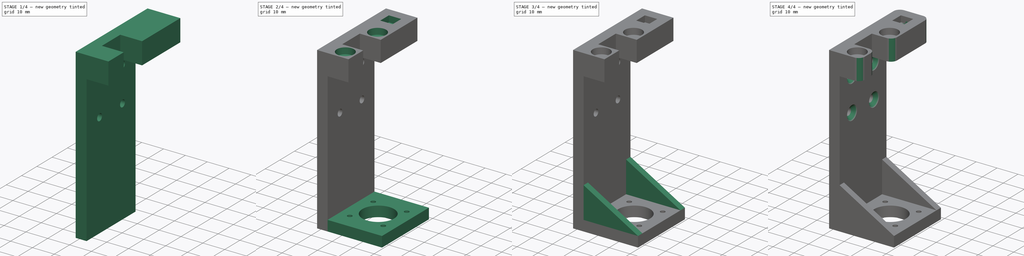
[diagram: build sequence overview — one tinted view per stage of 4, left to right]
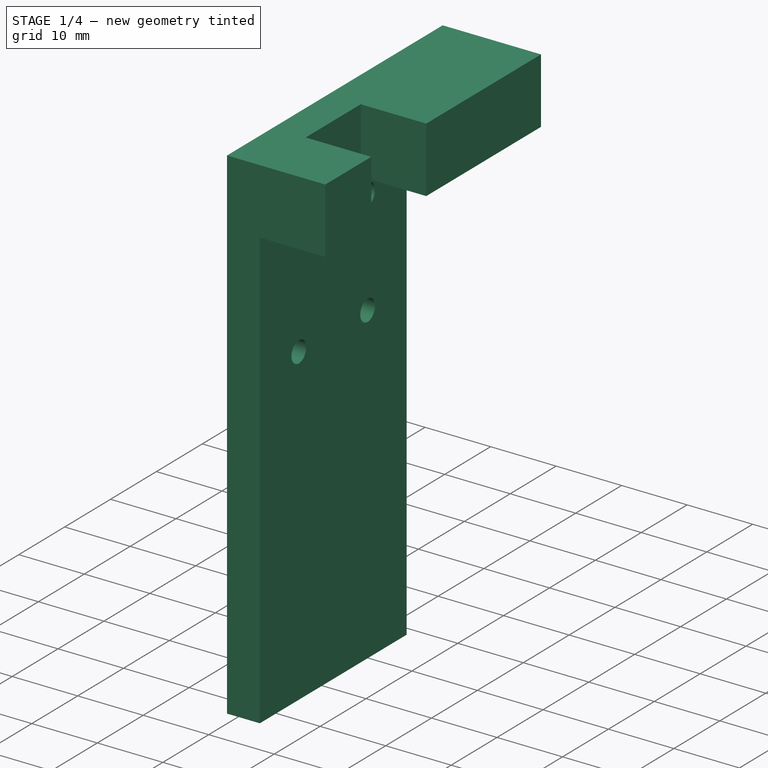
[diagram: stage 1 of 4 — iso view after this stage's code; geometry added in this stage tinted green]
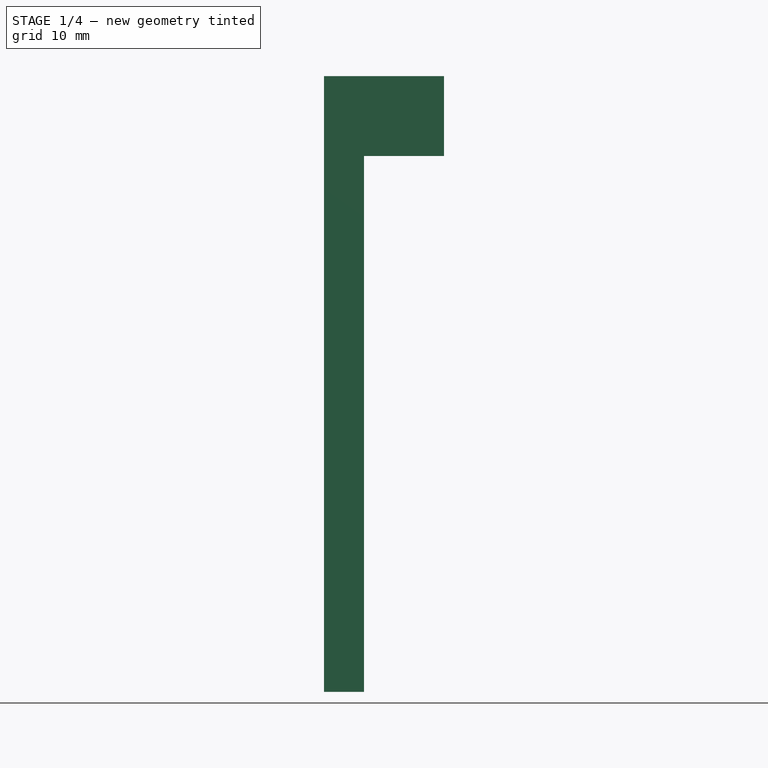
[diagram: stage 1 of 4 — front view after this stage's code; geometry added in this stage tinted green]
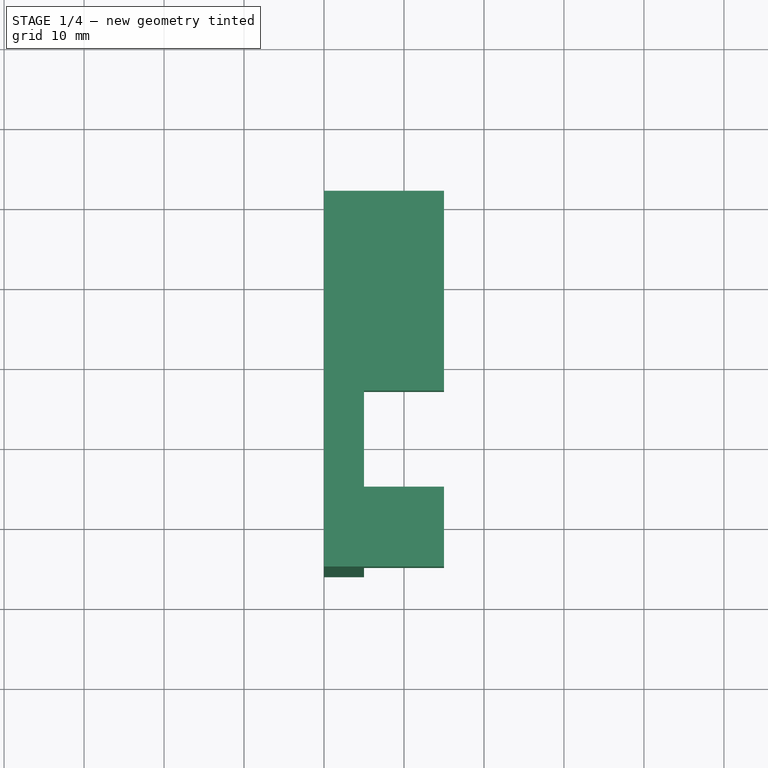
[diagram: stage 1 of 4 — top view after this stage's code; geometry added in this stage tinted green]
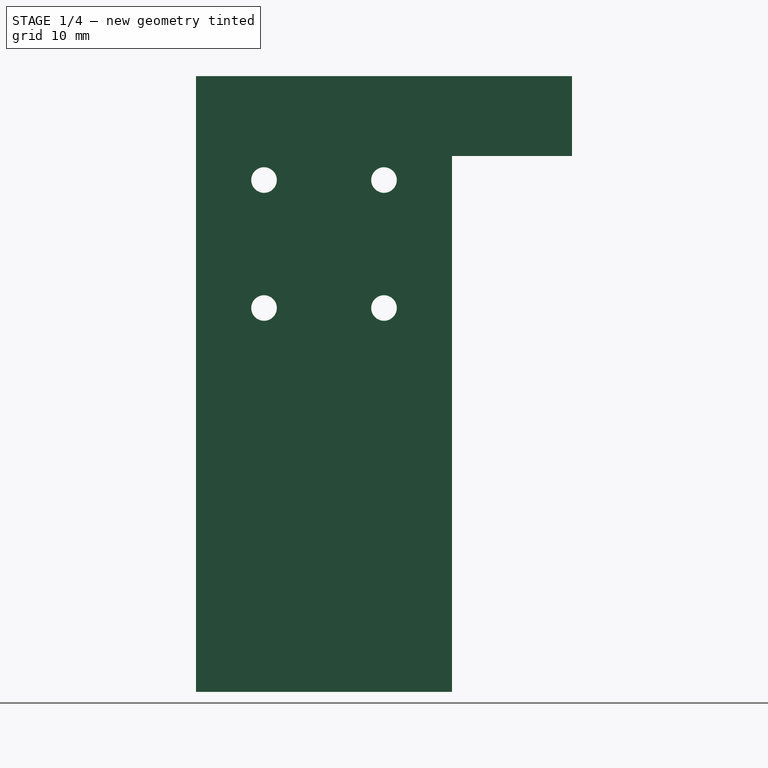
[diagram: stage 1 of 4 — right view after this stage's code; geometry added in this stage tinted green]
FCSTD DOCUMENT  (FreeCAD 0.20R29177 (Git))
Label: Holder_nema_down
License: All rights reserved
LicenseURL: http://en.wikipedia.org/wiki/All_rights_reserved
objects: Sketcher::SketchObject×9, PartDesign::Pad×6, PartDesign::Plane×6, PartDesign::Pocket×3, PartDesign::Fillet×1, PartDesign::Hole×1, PartDesign::Body×1
note: 38 computed .brp shape members not serialized (recipe doc carries the construction recipe); baked Part::Feature solids carry a one-line shape summary decoded from their .brp

FEATURE [Sketcher::SketchObject] Sketch
  FullyConstrained = false
  MapMode = 5
  Placement = pos=(0,0,0) rot=(0.57735,0.57735,0.57735;2.0944rad)
  Support = -> [YZ_Plane]
  sketch-geometry (8):
    g0: Circle CenterX=-7.5 CenterY=28 CenterZ=0 NormalX=0 NormalY=0 NormalZ=1 AngleXU=0 Radius=1.6
    g1: Circle CenterX=7.5 CenterY=28 CenterZ=0 NormalX=0 NormalY=0 NormalZ=1 AngleXU=0 Radius=1.6
    g2: Circle CenterX=-7.5 CenterY=12 CenterZ=0 NormalX=0 NormalY=0 NormalZ=1 AngleXU=0 Radius=1.6
    g3: Circle CenterX=7.5 CenterY=12 CenterZ=0 NormalX=0 NormalY=0 NormalZ=1 AngleXU=0 Radius=1.6
    g4: LineSegment StartX=16 StartY=41 StartZ=0 EndX=16 EndY=-36 EndZ=0
    g5: LineSegment StartX=-16 StartY=41 StartZ=0 EndX=-16 EndY=-36 EndZ=0
    g6: LineSegment StartX=-16 StartY=-36 StartZ=0 EndX=16 EndY=-36 EndZ=0
    g7: LineSegment StartX=-16 StartY=41 StartZ=0 EndX=16 EndY=41 EndZ=0
  constraints (22):
    c: Distance(g2,g-2) = 7.5
    c: Distance(g0,g-2) = 7.5
    c: Distance(g1,g-2) = 7.5
    c: Distance(g3,g-2) = 7.5
    c: Distance(g2,g0) = 16
    c: Distance(g3,g1) = 16
    c: Diameter(g0) = 3.2
    c: Diameter(g1) = 3.2
    c: Diameter(g3) = 3.2
    c: Diameter(g2) = 3.2
    c: Vertical(g4)
    c: Vertical(g5)
    c: DistanceX(g5,g4) = 32
    c: Distance(g5,g-2) = 16
    c: DistanceY(g5,g5) = 77
    c: Coincident(g6,g5)
    c: Coincident(g6,g4)
    c: Block(g6)
    c: DistanceY(g4,g4) = 77
    c: Coincident(g7,g5)
    c: Coincident(g7,g4)
    c: Horizontal(g7)
FEATURE [PartDesign::Pad] Pad  label="Plate"
  Direction = (1,-2e-16,3e-16)
  Length = 5
  Length2 = 10
  Placement = pos=(0,0,0) rot=(0.57735,0.57735,0.57735;2.0944rad)
  Profile = -> Sketch
  ReferenceAxis = -> Sketch [N_Axis]
  Type = 0
FEATURE [Sketcher::SketchObject] Sketch001
  FullyConstrained = false
  MapMode = 5
  Placement = pos=(5,-1.1e-15,1.1e-15) rot=(0.57735,0.57735,0.57735;2.0944rad)
  Support = -> [Pad]
  sketch-geometry (8):
    g0: LineSegment StartX=-16 StartY=41 StartZ=0 EndX=-6 EndY=41 EndZ=0
    g1: LineSegment StartX=-6 StartY=41 StartZ=0 EndX=-6 EndY=31 EndZ=0
    g2: LineSegment StartX=-6 StartY=31 StartZ=0 EndX=-16 EndY=31 EndZ=0
    g3: LineSegment StartX=-16 StartY=31 StartZ=0 EndX=-16 EndY=41 EndZ=0
    g4: LineSegment StartX=16 StartY=41 StartZ=0 EndX=6 EndY=41 EndZ=0
    g5: LineSegment StartX=6 StartY=41 StartZ=0 EndX=6 EndY=31 EndZ=0
    g6: LineSegment StartX=6 StartY=31 StartZ=0 EndX=16 EndY=31 EndZ=0
    g7: LineSegment StartX=16 StartY=31 StartZ=0 EndX=16 EndY=41 EndZ=0
  constraints (20):
    c: Coincident(g0,g1)
    c: Coincident(g1,g2)
    c: Coincident(g2,g3)
    c: Coincident(g3,g0)
    c: Horizontal(g0)
    c: Horizontal(g2)
    c: Vertical(g1)
    c: Vertical(g3)
    c: Coincident(g4,g5)
    c: Coincident(g5,g6)
    c: Coincident(g6,g7)
    c: Coincident(g7,g4)
    c: Horizontal(g4)
    c: Horizontal(g6)
    c: Vertical(g5)
    c: Vertical(g7)
    c: DistanceX(g0,g0) = 10
    c: DistanceX(g4,g4) = 10
    c: DistanceY(g1,g1) = 10
    c: DistanceY(g7,g7) = 10
FEATURE [PartDesign::Pad] Pad001  label="Holder spring"
  BaseFeature = -> Pad
  Direction = (1,-4e-16,4e-16)
  Length = 10
  Length2 = 10
  Placement = pos=(0,0,0) rot=(0.57735,0.57735,0.57735;2.0944rad)
  Profile = -> Sketch001
  ReferenceAxis = -> Sketch001 [N_Axis]
  Type = 0
FEATURE [PartDesign::Plane] DatumPlane
  AttachmentOffset = pos=(0,0,-10) rot=(0,0,1;0rad)
  Length = 67.2
  MapMode = 5
  Placement = pos=(-1.8e-14,9e-15,41) rot=(0.707107,0.707107,0;3.14159rad)
  ResizeMode = 0
  Support = -> [Pad001]
  Width = 67.2
FEATURE [Sketcher::SketchObject] Sketch009
  FullyConstrained = false
  MapMode = 5
  Placement = pos=(7e-15,16,-1.1e-14) rot=(0.57735,0.57735,0.57735;4.18879rad)
  sketch-geometry (4):
    g0: LineSegment StartX=41 StartY=0 StartZ=0 EndX=31 EndY=0 EndZ=0
    g1: LineSegment StartX=31 StartY=0 StartZ=0 EndX=31 EndY=15 EndZ=0
    g2: LineSegment StartX=31 StartY=15 StartZ=0 EndX=41 EndY=15 EndZ=0
    g3: LineSegment StartX=41 StartY=15 StartZ=0 EndX=41 EndY=0 EndZ=0
  constraints (10):
    c: Coincident(g0,g1)
    c: Coincident(g1,g2)
    c: Coincident(g2,g3)
    c: Coincident(g3,g0)
    c: Horizontal(g0)
    c: Horizontal(g2)
    c: Vertical(g1)
    c: Vertical(g3)
    c: PointOnObject(g0,g-1)
    c: DistanceX(g2,g2) = 10
FEATURE [PartDesign::Pad] Pad005  label="Holder bolt001"
  BaseFeature = -> Pad001
  Direction = (-1e-16,1,-1e-15)
  Length = 15
  Length2 = 10
  Placement = pos=(0,0,0) rot=(0.57735,0.57735,0.57735;2.0944rad)
  Profile = -> Sketch009
  ReferenceAxis = -> Sketch009 [N_Axis]
  Type = 0
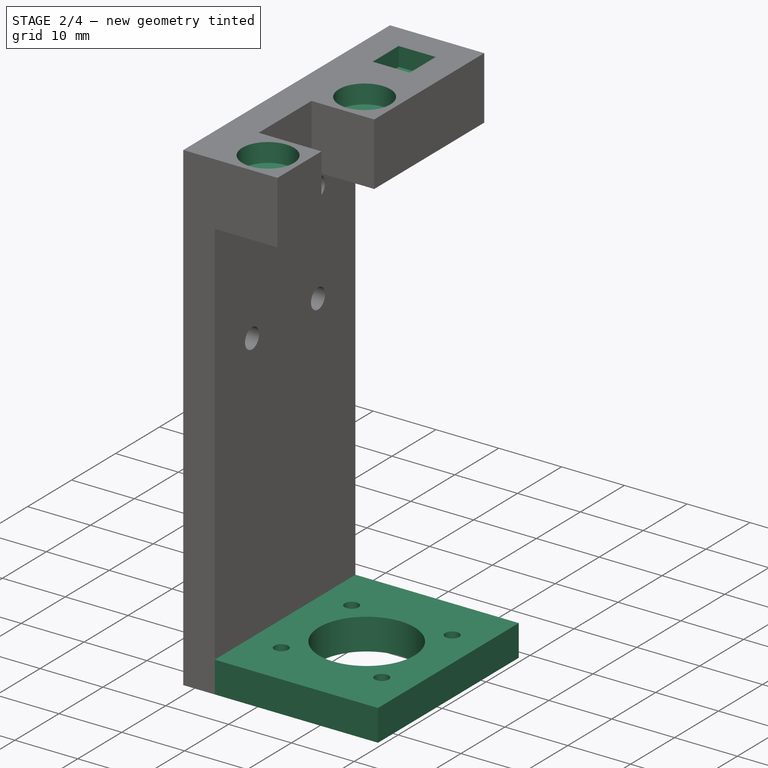
[diagram: stage 2 of 4 — iso view after this stage's code; geometry added in this stage tinted green]
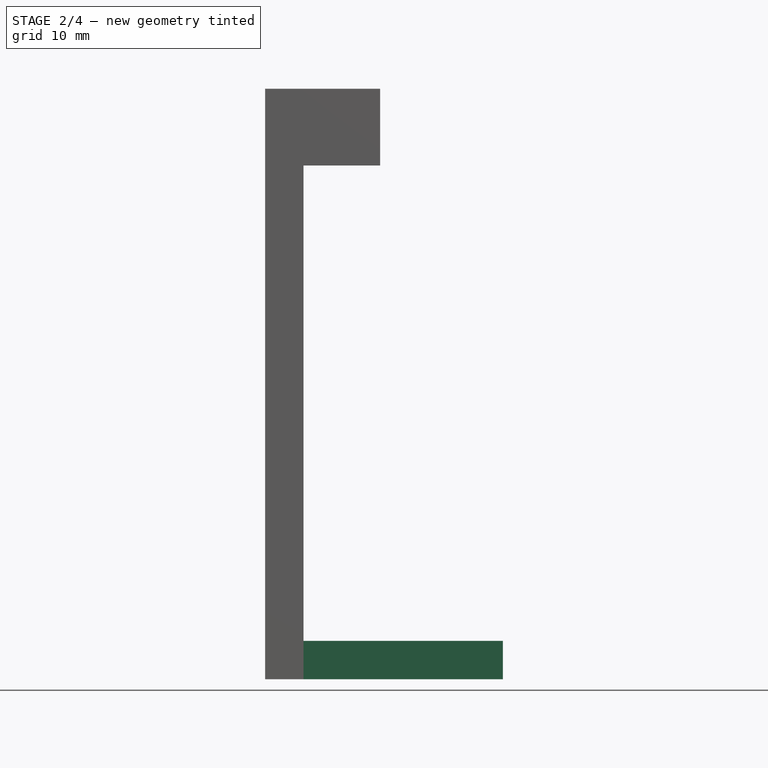
[diagram: stage 2 of 4 — front view after this stage's code; geometry added in this stage tinted green]
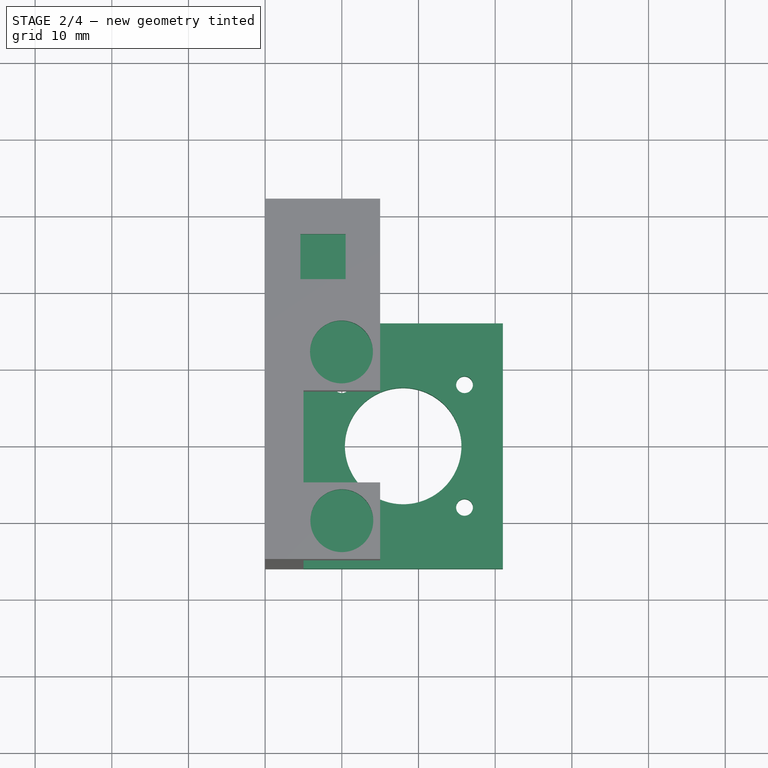
[diagram: stage 2 of 4 — top view after this stage's code; geometry added in this stage tinted green]
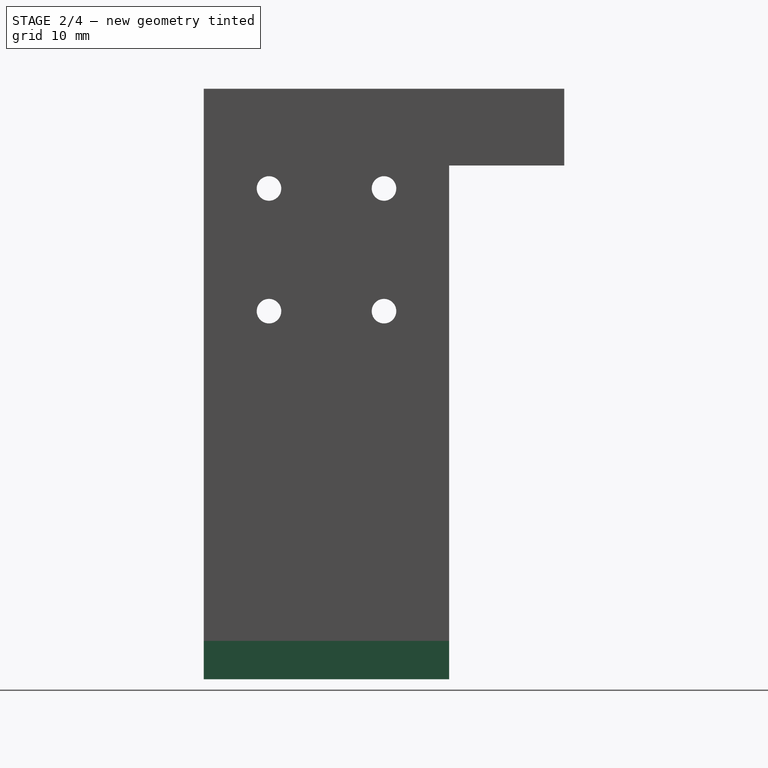
[diagram: stage 2 of 4 — right view after this stage's code; geometry added in this stage tinted green]
FEATURE [Sketcher::SketchObject] Sketch010
  FullyConstrained = false
  MapMode = 5
  Placement = pos=(5,-1.1e-15,1.1e-15) rot=(0.57735,0.57735,0.57735;2.0944rad)
  Support = -> [Pad005]
  sketch-geometry (4):
    g0: LineSegment StartX=-16 StartY=-36 StartZ=0 EndX=16 EndY=-36 EndZ=0
    g1: LineSegment StartX=16 StartY=-36 StartZ=0 EndX=16 EndY=-31 EndZ=0
    g2: LineSegment StartX=16 StartY=-31 StartZ=0 EndX=-16 EndY=-31 EndZ=0
    g3: LineSegment StartX=-16 StartY=-31 StartZ=0 EndX=-16 EndY=-36 EndZ=0
  constraints (10):
    c: Coincident(g0,g1)
    c: Coincident(g1,g2)
    c: Coincident(g2,g3)
    c: Coincident(g3,g0)
    c: Horizontal(g0)
    c: Horizontal(g2)
    c: Vertical(g1)
    c: Vertical(g3)
    c: DistanceY(g1,g1) = 5
    c: Distance(g1,g-1) = 31
FEATURE [PartDesign::Pad] Pad006  label="Motor plate"
  BaseFeature = -> Pad005
  Direction = (1,-8e-16,6e-16)
  Length = 26
  Length2 = 10
  Placement = pos=(0,0,0) rot=(0.57735,0.57735,0.57735;2.0944rad)
  Profile = -> Sketch010
  ReferenceAxis = -> Sketch010 [N_Axis]
  Type = 0
FEATURE [PartDesign::Plane] DatumPlane001
  AttachmentOffset = pos=(0,0,1) rot=(0,0,1;0rad)
  Length = 67.2
  MapMode = 5
  Placement = pos=(-1.18e-14,1.85e-14,42) rot=(0,0,-1;1.5708rad)
  ResizeMode = 0
  Support = -> [Pad006]
  Width = 67.2
FEATURE [Sketcher::SketchObject] Sketch011
  FullyConstrained = false
  MapMode = 5
  Placement = pos=(-1.18e-14,1.85e-14,42) rot=(0,0,-1;1.5708rad)
  Support = -> [DatumPlane001]
  sketch-geometry (6):
    g0: Circle CenterX=-11.0122 CenterY=9.95599 CenterZ=0 NormalX=0 NormalY=0 NormalZ=1 AngleXU=0 Radius=4.1
    g1: Circle CenterX=11 CenterY=10 CenterZ=0 NormalX=0 NormalY=0 NormalZ=1 AngleXU=0 Radius=4.1
    g2: LineSegment StartX=-26.4 StartY=10.5 StartZ=0 EndX=-20.5 EndY=10.5 EndZ=0
    g3: LineSegment StartX=-20.5 StartY=10.5 StartZ=0 EndX=-20.5 EndY=4.6 EndZ=0
    g4: LineSegment StartX=-20.5 StartY=4.6 StartZ=0 EndX=-26.4 EndY=4.6 EndZ=0
    g5: LineSegment StartX=-26.4 StartY=4.6 StartZ=0 EndX=-26.4 EndY=10.5 EndZ=0
  constraints (12):
    c: Coincident(g2,g3)
    c: Coincident(g3,g4)
    c: Coincident(g4,g5)
    c: Coincident(g5,g2)
    c: Horizontal(g2)
    c: Horizontal(g4)
    c: Vertical(g3)
    c: Vertical(g5)
    c: DistanceX(g2,g2) = 5.9
    c: DistanceY(g3,g3) = 5.9
    c: Diameter(g0) = 8.2
    c: Diameter(g1) = 8.2
FEATURE [PartDesign::Pocket] Pocket  label="Hole springs"
  BaseFeature = -> Pad006
  Direction = (3e-16,-4e-16,-1)
  Length = 4
  Length2 = 5
  Placement = pos=(0,0,0) rot=(0.57735,0.57735,0.57735;2.0944rad)
  Profile = -> Sketch011
  ReferenceAxis = -> Sketch011 [N_Axis]
  Type = 0
FEATURE [PartDesign::Plane] DatumPlane003
  Length = 67.6893
  MapMode = 5
  Placement = pos=(36,0,-31) rot=(0,0,1;1.5708rad)
  ResizeMode = 0
  Width = 72.6893
FEATURE [Sketcher::SketchObject] Sketch013
  FullyConstrained = true
  MapMode = 5
  Placement = pos=(36,0,-31) rot=(0,0,1;1.5708rad)
  Support = -> [DatumPlane003]
  sketch-geometry (5):
    g0: Circle CenterX=0 CenterY=18 CenterZ=0 NormalX=0 NormalY=0 NormalZ=1 AngleXU=0 Radius=7.6
    g1: Circle CenterX=8 CenterY=26 CenterZ=0 NormalX=0 NormalY=0 NormalZ=1 AngleXU=0 Radius=1.1
    g2: Circle CenterX=8 CenterY=10 CenterZ=0 NormalX=0 NormalY=0 NormalZ=1 AngleXU=0 Radius=1.1
    g3: Circle CenterX=-8 CenterY=26 CenterZ=0 NormalX=0 NormalY=0 NormalZ=1 AngleXU=0 Radius=1.1
    g4: Circle CenterX=-8 CenterY=10 CenterZ=0 NormalX=0 NormalY=0 NormalZ=1 AngleXU=0 Radius=1.1
  constraints (15):
    c: PointOnObject(g0,g-2)
    c: Diameter(g0) = 15.2
    c: Diameter(g1) = 2.2
    c: Diameter(g2) = 2.2
    c: Diameter(g3) = 2.2
    c: Diameter(g4) = 2.2
    c: Distance(g3,g-2) = 8
    c: Distance(g1,g-2) = 8
    c: Distance(g2,g-2) = 8
    c: Distance(g4,g-2) = 8
    c: Distance(g0,g-1) = 18
    c: Distance(g4,g-1) = 10
    c: Distance(g2,g-1) = 10
    c: Distance(g2,g1) = 16
    c: Distance(g4,g3) = 16
FEATURE [PartDesign::Pocket] Pocket002  label="Hole for motor"
  BaseFeature = -> Pocket
  Direction = (0,0,-1)
  Length = 5
  Length2 = 5
  Placement = pos=(0,0,0) rot=(0.57735,0.57735,0.57735;2.0944rad)
  Profile = -> Sketch013
  ReferenceAxis = -> Sketch013 [N_Axis]
  Type = 0
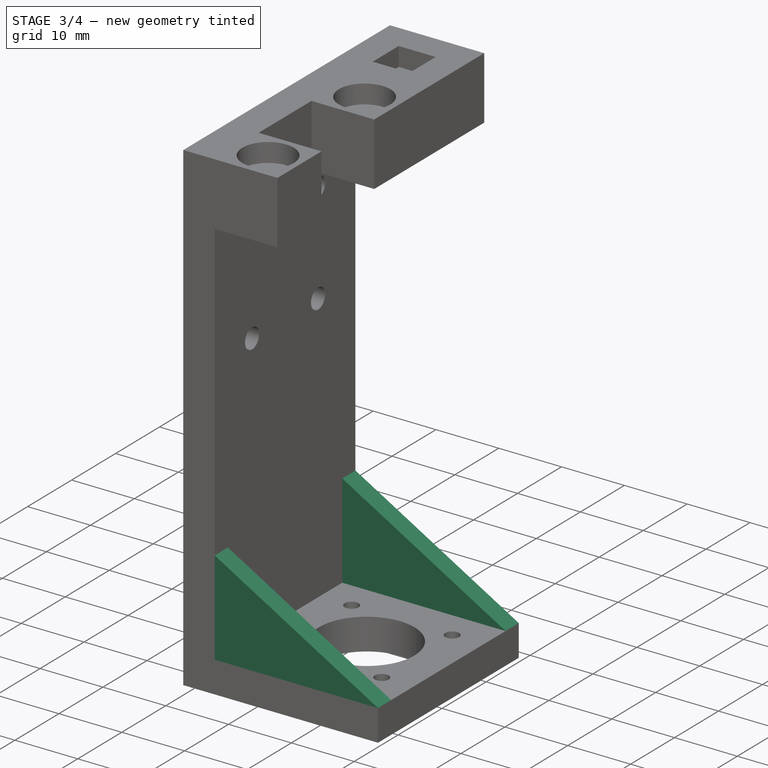
[diagram: stage 3 of 4 — iso view after this stage's code; geometry added in this stage tinted green]
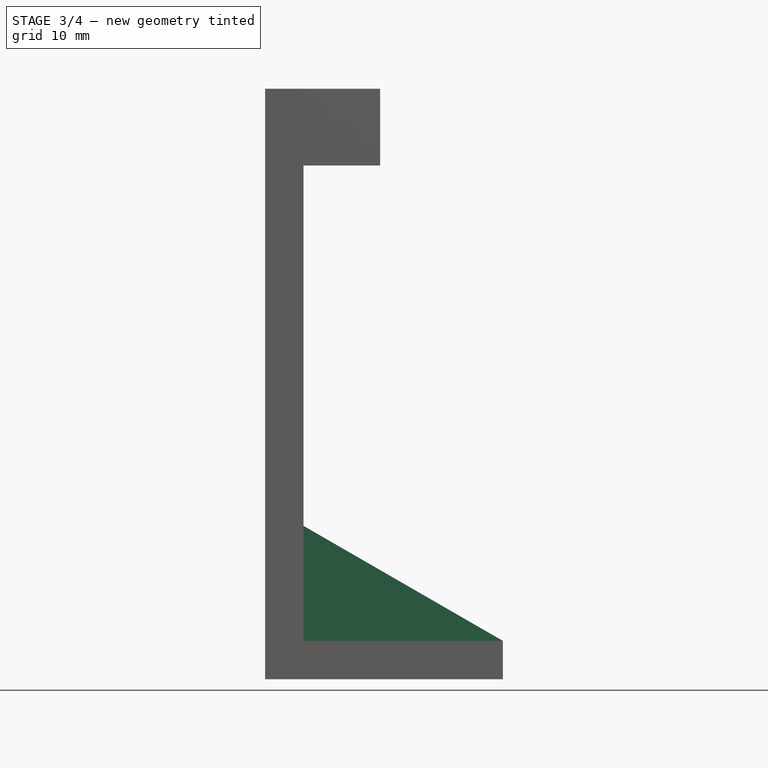
[diagram: stage 3 of 4 — front view after this stage's code; geometry added in this stage tinted green]
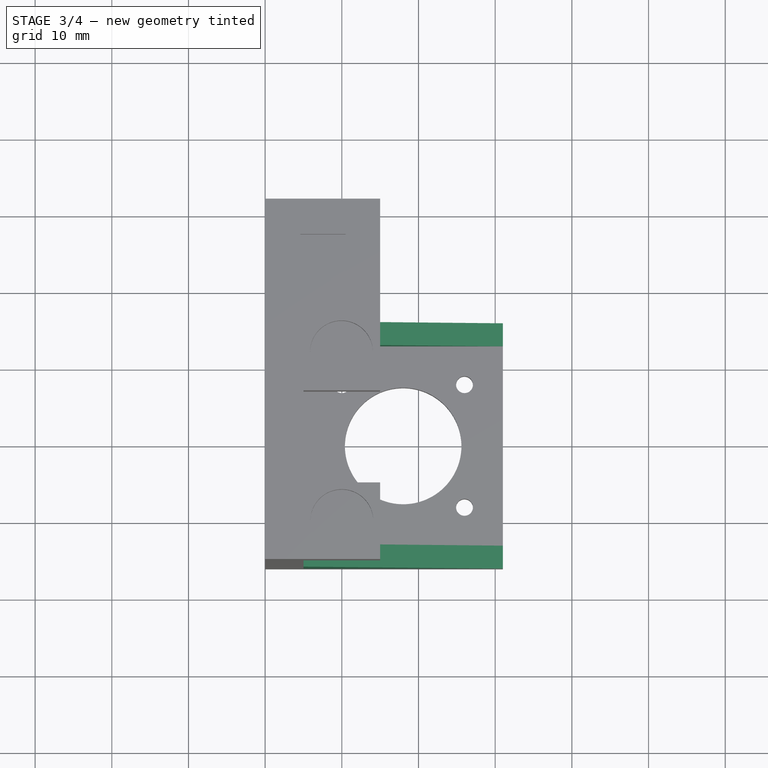
[diagram: stage 3 of 4 — top view after this stage's code; geometry added in this stage tinted green]
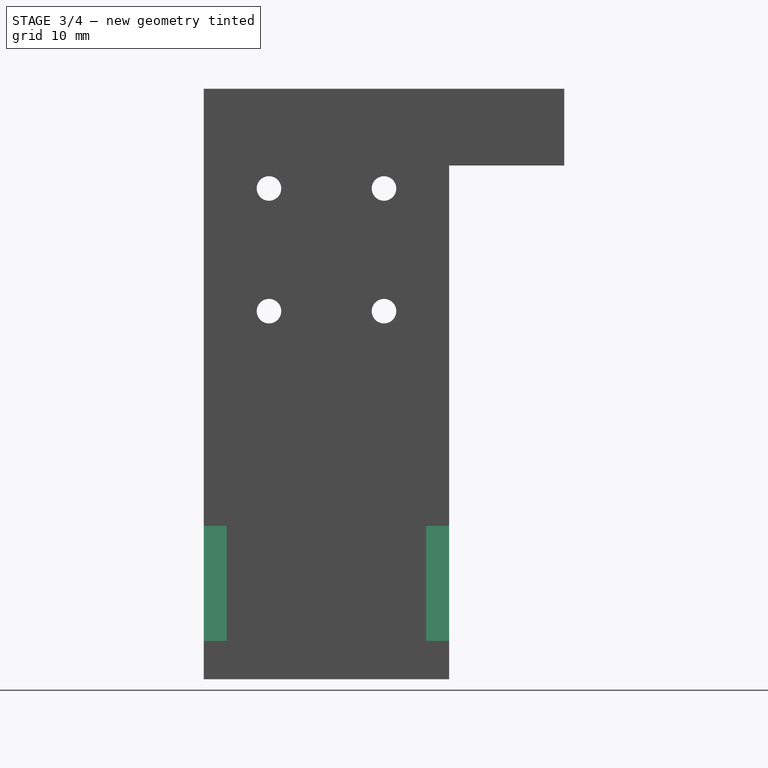
[diagram: stage 3 of 4 — right view after this stage's code; geometry added in this stage tinted green]
FEATURE [PartDesign::Plane] DatumPlane004
  AttachmentOffset = pos=(30,0,0) rot=(0,0,1;0rad)
  Length = 90.1332
  MapMode = 5
  Placement = pos=(-1.93e-14,-16,-30) rot=(0.57735,0.57735,-0.57735;2.0944rad)
  ResizeMode = 0
  Support = -> [Pocket002]
  Width = 69.1332
FEATURE [Sketcher::SketchObject] Sketch014
  FullyConstrained = false
  MapMode = 5
  Placement = pos=(-1.93e-14,-16,-30) rot=(-0.57735,-0.57735,0.57735;4.18879rad)
  Support = -> [DatumPlane004]
  sketch-geometry (3):
    g0: LineSegment StartX=1 StartY=31 StartZ=0 EndX=1 EndY=5 EndZ=0
    g1: LineSegment StartX=1 StartY=5 StartZ=0 EndX=-14 EndY=5 EndZ=0
    g2: LineSegment StartX=-14 StartY=5 StartZ=0 EndX=1 EndY=31 EndZ=0
  constraints (5):
    c: Vertical(g0)
    c: Coincident(g1,g0)
    c: Horizontal(g1)
    c: Coincident(g2,g1)
    c: Coincident(g2,g0)
FEATURE [PartDesign::Pad] Pad007  label="Tringle_left"
  BaseFeature = -> Pocket002
  Direction = (-1.3e-15,-1,0)
  Length = 3
  Length2 = 10
  Placement = pos=(0,0,0) rot=(0.57735,0.57735,0.57735;2.0944rad)
  Profile = -> Sketch014
  ReferenceAxis = -> Sketch014 [N_Axis]
  Reversed = true
  Type = 0
FEATURE [PartDesign::Plane] DatumPlane005
  Length = 90.1332
  MapMode = 5
  Placement = pos=(1.6e-14,16,1.8e-15) rot=(0.57735,0.57735,0.57735;4.18879rad)
  ResizeMode = 0
  Support = -> [Pad007]
  Width = 69.1332
FEATURE [Sketcher::SketchObject] Sketch015
  FullyConstrained = false
  MapMode = 5
  Placement = pos=(1.6e-14,16,1.8e-15) rot=(0.57735,0.57735,0.57735;4.18879rad)
  Support = -> [DatumPlane005]
  sketch-geometry (3):
    g0: LineSegment StartX=-31 StartY=31 StartZ=0 EndX=-31 EndY=5 EndZ=0
    g1: LineSegment StartX=-31 StartY=5 StartZ=0 EndX=-16 EndY=5 EndZ=0
    g2: LineSegment StartX=-16 StartY=5 StartZ=0 EndX=-31 EndY=31 EndZ=0
  constraints (5):
    c: Vertical(g0)
    c: Coincident(g1,g0)
    c: Horizontal(g1)
    c: Coincident(g2,g1)
    c: Coincident(g2,g0)
FEATURE [PartDesign::Pad] Pad008  label="Tringle_right"
  BaseFeature = -> Pad007
  Direction = (1.3e-15,1,0)
  Length = 3
  Length2 = 10
  Placement = pos=(0,0,0) rot=(0.57735,0.57735,0.57735;2.0944rad)
  Profile = -> Sketch015
  ReferenceAxis = -> Sketch015 [N_Axis]
  Reversed = true
  Type = 0
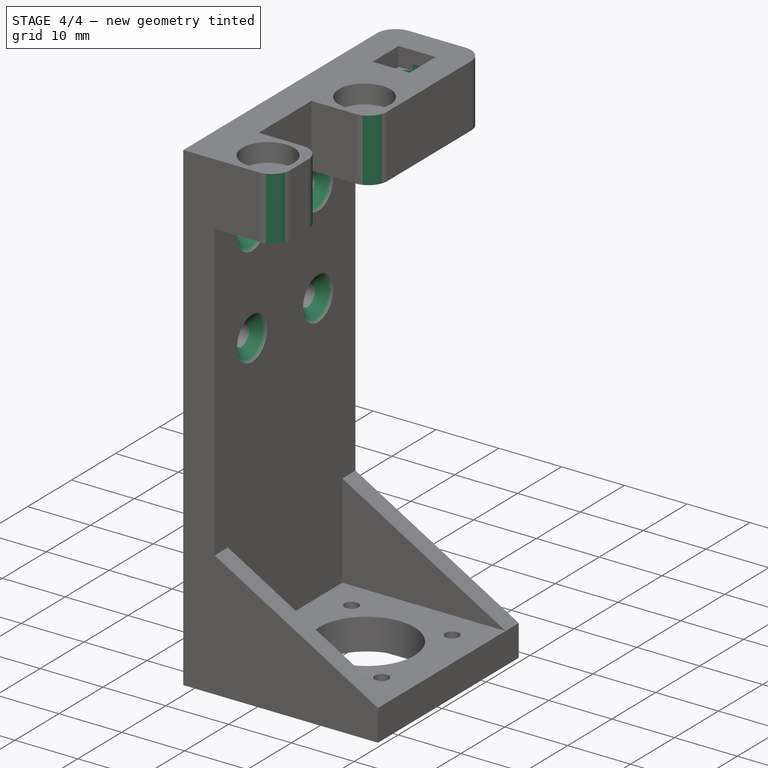
[diagram: stage 4 of 4 — iso view after this stage's code; geometry added in this stage tinted green]
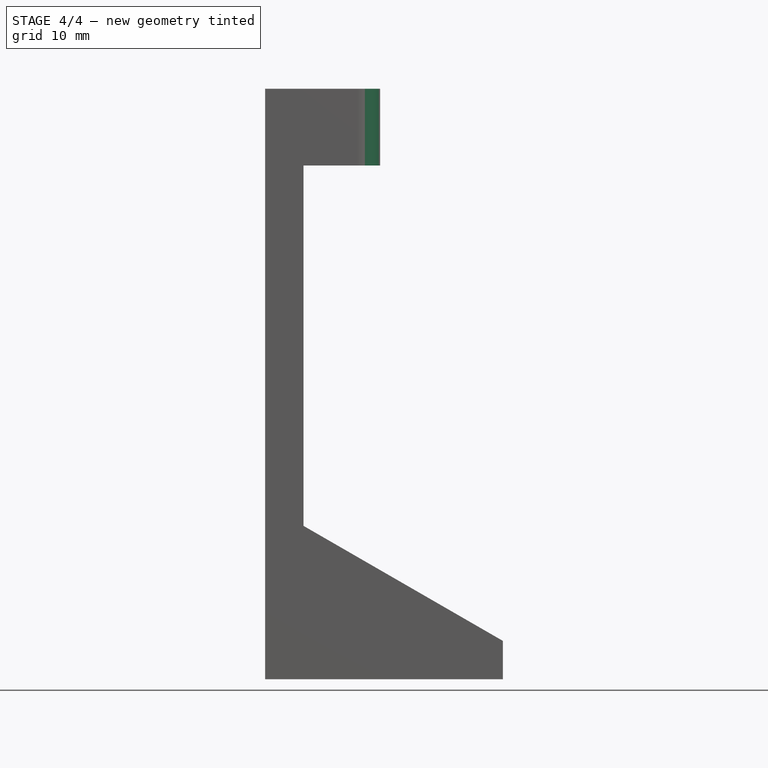
[diagram: stage 4 of 4 — front view after this stage's code; geometry added in this stage tinted green]
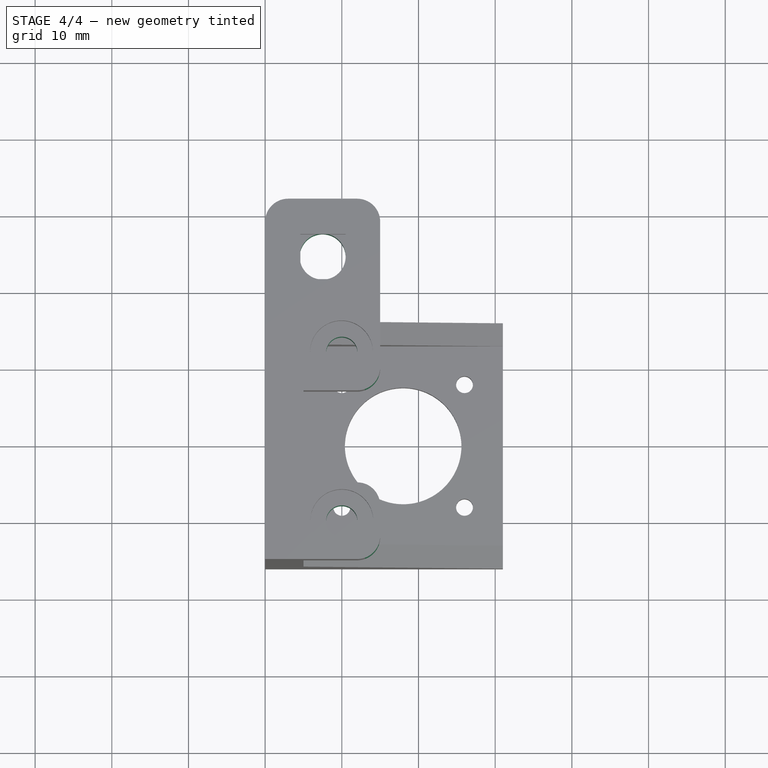
[diagram: stage 4 of 4 — top view after this stage's code; geometry added in this stage tinted green]
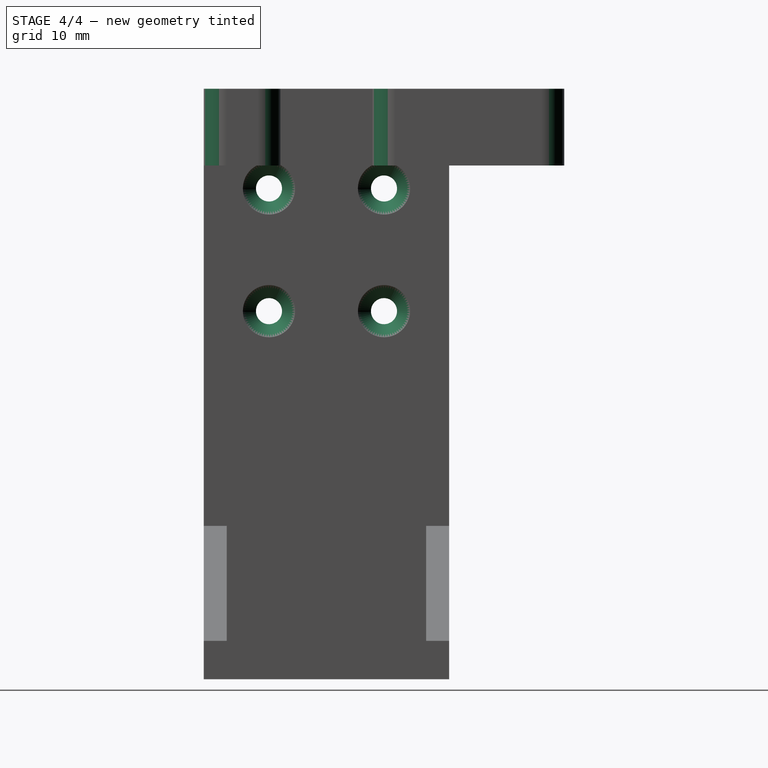
[diagram: stage 4 of 4 — right view after this stage's code; geometry added in this stage tinted green]
FEATURE [PartDesign::Plane] DatumPlane006
  AttachmentOffset = pos=(0,0,1) rot=(0,0,1;0rad)
  Length = 67.2
  MapMode = 5
  Placement = pos=(-1.17e-14,1.52e-14,39) rot=(0,0,-1;1.5708rad)
  ResizeMode = 0
  Support = -> [Pad008]
  Width = 67.2
FEATURE [Sketcher::SketchObject] Sketch016
  FullyConstrained = false
  MapMode = 5
  Placement = pos=(-1.17e-14,1.52e-14,39) rot=(0,0,-1;1.5708rad)
  Support = -> [DatumPlane006]
  sketch-geometry (3):
    g0: Circle CenterX=-11 CenterY=10 CenterZ=0 NormalX=0 NormalY=0 NormalZ=1 AngleXU=0 Radius=2.05
    g1: Circle CenterX=11 CenterY=10 CenterZ=0 NormalX=0 NormalY=0 NormalZ=1 AngleXU=0 Radius=2.05
    g2: Circle CenterX=-23.5 CenterY=7.5 CenterZ=0 NormalX=0 NormalY=0 NormalZ=1 AngleXU=0 Radius=3
  constraints (3):
    c: Diameter(g1) = 4.1
    c: Diameter(g0) = 4.1
    c: Diameter(g2) = 6
FEATURE [PartDesign::Pocket] Pocket003
  BaseFeature = -> Pad008
  Direction = (3e-16,-8e-16,-1)
  Length = 10
  Length2 = 5
  Placement = pos=(0,0,0) rot=(0.57735,0.57735,0.57735;2.0944rad)
  Profile = -> Sketch016
  ReferenceAxis = -> Sketch016 [N_Axis]
  Type = 0
FEATURE [PartDesign::Fillet] Fillet
  Base = -> Pocket003 [Edge52,Edge90,Edge96,Edge59,Edge60]
  BaseFeature = -> Pocket003
  Placement = pos=(0,0,0) rot=(0.57735,0.57735,0.57735;2.0944rad)
  Radius = 3
  SupportTransform = false
  UseAllEdges = false
FEATURE [PartDesign::Hole] Hole
  BaseFeature = -> Fillet
  CustomThreadClearance = 0
  Depth = 25
  DepthType = 0
  Diameter = 3.4
  DrillForDepth = false
  DrillPoint = 1
  DrillPointAngle = 118
  HoleCutCountersinkAngle = 90
  HoleCutCustomValues = false
  HoleCutDepth = 0
  HoleCutDiameter = 6.8
  HoleCutType = 4
  ModelThread = false
  Placement = pos=(0,0,0) rot=(0.57735,0.57735,0.57735;2.0944rad)
  Profile = -> Fillet [Edge92,Edge93,Edge91,Edge90]
  Tapered = false
  TaperedAngle = 90
  ThreadClass = 0
  ThreadDepth = 25
  ThreadDepthType = 0
  ThreadDirection = 0
  ThreadFit = 0
  ThreadSize = 9
  ThreadType = 2
  Threaded = false
  UseCustomThreadClearance = false
FEATURE [PartDesign::Body] Body
  Group = -> [Sketch,Pad,Sketch001,Pad001,DatumPlane,Sketch009,Pad005,Sketch010,Pad006,DatumPlane001,Sketch011,Pocket,DatumPlane003,Sketch013,Pocket002,DatumPlane004,Sketch014,Pad007,DatumPlane005,Sketch015,Pad008,DatumPlane006,Sketch016,Pocket003,Fillet,Hole]
  Origin = -> Origin
  Tip = -> Hole
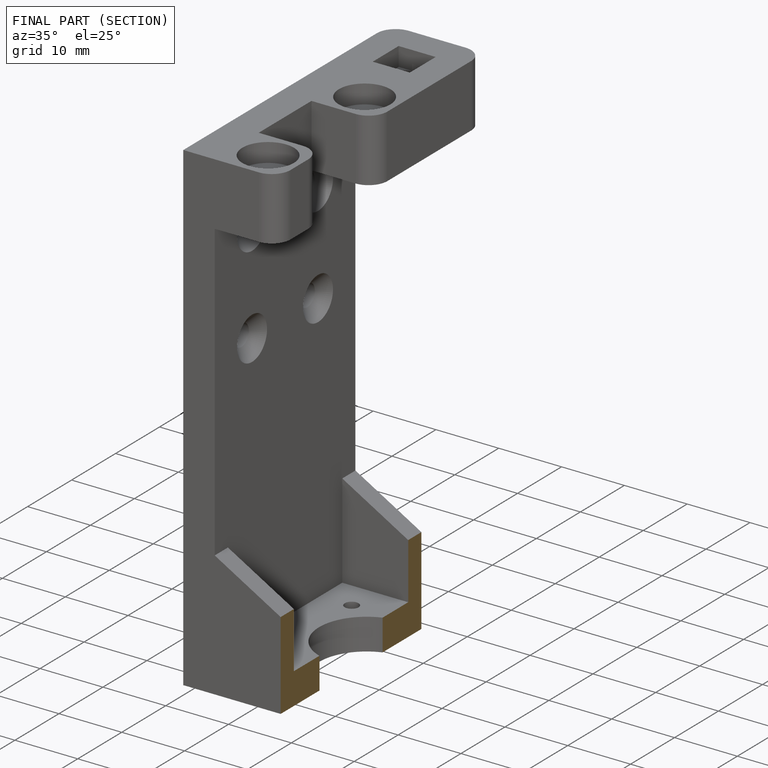
[diagram: finished part — half-section view (interior)]
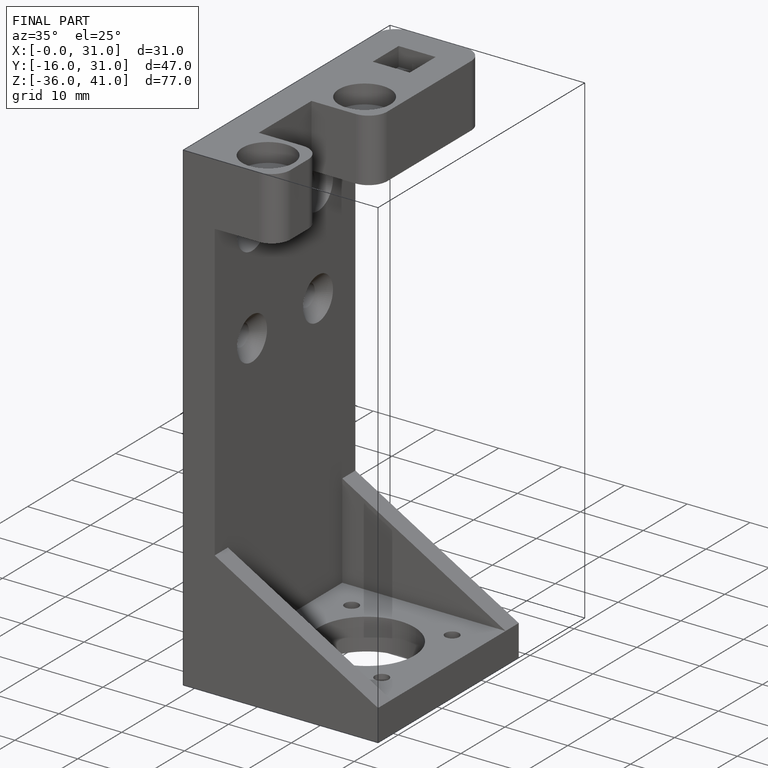
[diagram: finished part — iso view with bounding-box wireframe]
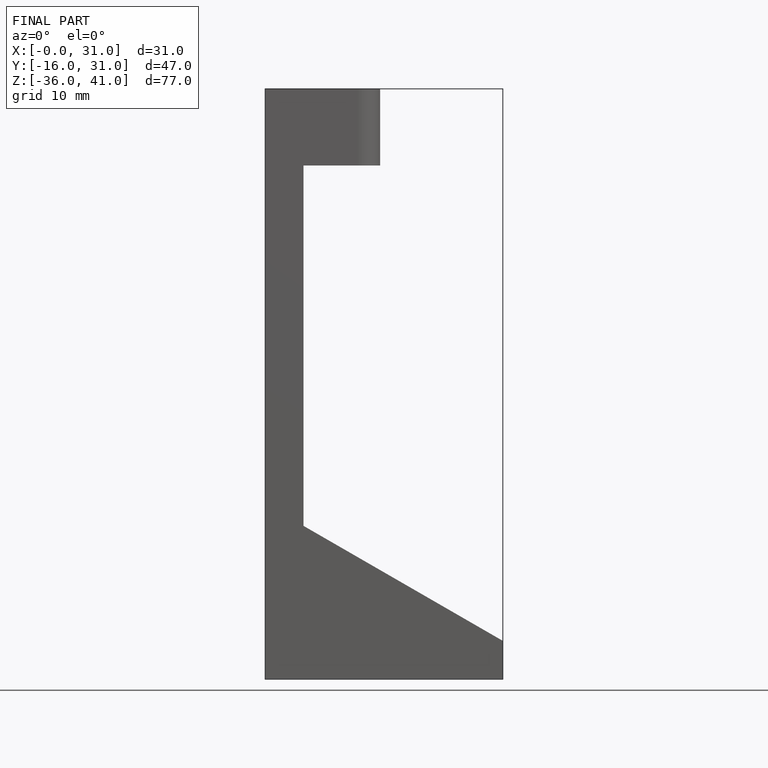
[diagram: finished part — front view with bounding-box wireframe]
